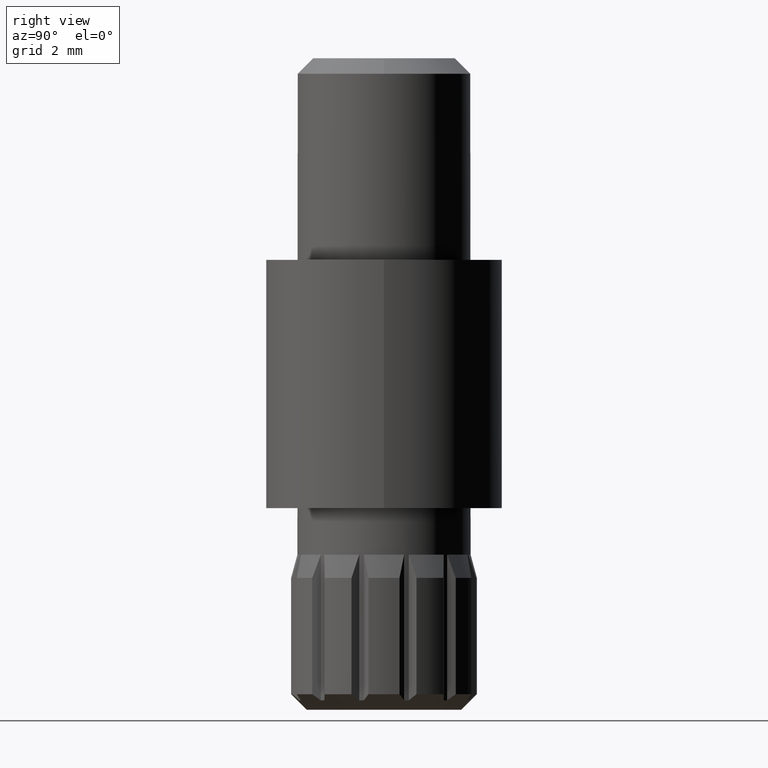
[diagram: clean part render]
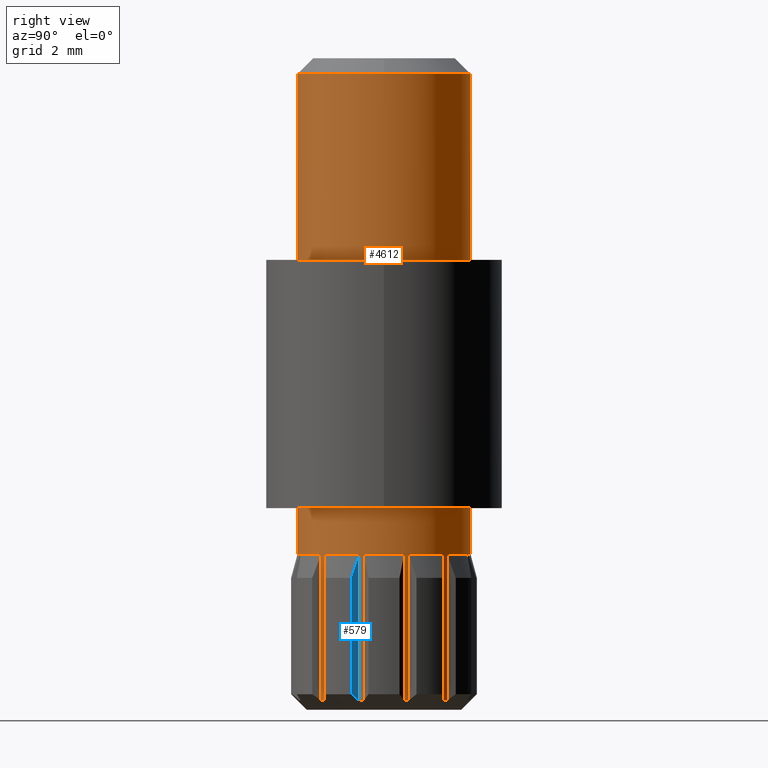
[diagram: same view with the hole feature highlighted: cylindrical wall and planar end face, labeled with their STEP entity ids]
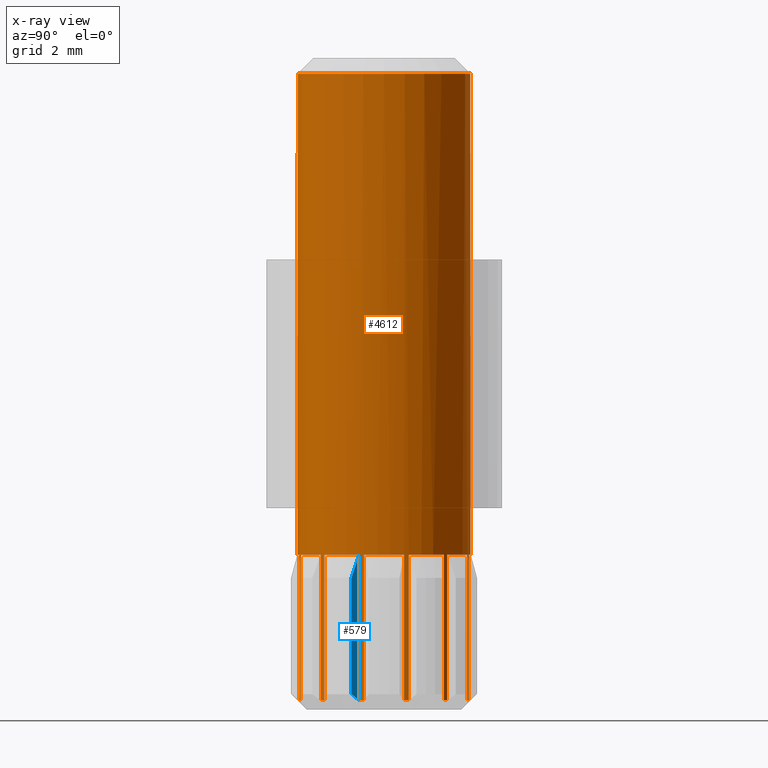
[diagram: x-ray of the same camera — body ghosted, the hole faces saturated]
A machine part, right view. The highlighted faces form one hole feature of diameter 5.6 mm: the cylindrical wall (entity #4612, orange) and its adjacent planar end face (entity #579, blue) — they share a circular edge in the B-rep.
The next image is the same camera in x-ray (body ghosted, the hole faces saturated) — the bore reads through the body.
Wall:
#38 = CARTESIAN_POINT ( 'NONE',  ( -0.7988378706797688578, -2.683627779027451421, 5.000000000000000888 ) ) ;
#79 = ORIENTED_EDGE ( 'NONE', *, *, #9428, .T. ) ;
#97 = ORIENTED_EDGE ( 'NONE', *, *, #5874, .T. ) ;
#124 = LINE ( 'NONE', #7126, #6521 ) ;
#139 = VERTEX_POINT ( 'NONE', #4290 ) ;
#140 = VERTEX_POINT ( 'NONE', #9997 ) ;
#157 = CARTESIAN_POINT ( 'NONE',  ( 1.924670895599505327, -2.033627779027469273, 5.000000000000000888 ) ) ;
#175 = VERTEX_POINT ( 'NONE', #12115 ) ;
#205 = VERTEX_POINT ( 'NONE', #11985 ) ;
#230 = CIRCLE ( 'NONE', #7577, 2.799999999999999822 ) ;
#262 = DIRECTION ( 'NONE',  ( 0.8660254037844344888, -0.5000000000000071054, 0.000000000000000000 ) ) ;
#294 = CARTESIAN_POINT ( 'NONE',  ( -2.723508766279257198, 0.6500000000000284439, 0.2999999999999996003 ) ) ;
#297 = CIRCLE ( 'NONE', #5065, 2.799999999999999822 ) ;
#324 = EDGE_CURVE ( 'NONE', #4536, #140, #11591, .T. ) ;
#355 = CARTESIAN_POINT ( 'NONE',  ( -0.6500000000000000222, 2.723508766279264304, 5.000000000000000888 ) ) ;
#381 = LINE ( 'NONE', #4575, #9552 ) ;
#425 = CARTESIAN_POINT ( 'NONE',  ( -1.924670895599491116, 2.033627779027482596, 0.2999999999999996003 ) ) ;
#510 = DIRECTION ( 'NONE',  ( -0.8660254037844449249, -0.4999999999999889533, 0.000000000000000000 ) ) ;
#575 = CIRCLE ( 'NONE', #7909, 2.800000000000000266 ) ;
#601 = VECTOR ( 'NONE', #10291, 1000.000000000000000 ) ;
#624 = CARTESIAN_POINT ( 'NONE',  ( 0.000000000000000000, 0.000000000000000000, 5.000000000000000000 ) ) ;
#650 = EDGE_CURVE ( 'NONE', #9462, #793, #4235, .T. ) ;
#676 = DIRECTION ( 'NONE',  ( 0.000000000000000000, 0.000000000000000000, -1.000000000000000000 ) ) ;
#679 = ORIENTED_EDGE ( 'NONE', *, *, #12141, .F. ) ;
#737 = LINE ( 'NONE', #9829, #2248 ) ;
#767 = CARTESIAN_POINT ( 'NONE',  ( 2.799999999999999822, 0.000000000000000000, 20.50000000000000355 ) ) ;
#779 = CARTESIAN_POINT ( 'NONE',  ( -2.723508766279257198, 0.6500000000000284439, 5.000000000000000000 ) ) ;
#791 = DIRECTION ( 'NONE',  ( 3.491481338843133750E-15, 1.000000000000000000, 0.000000000000000000 ) ) ;
#793 = VERTEX_POINT ( 'NONE', #9359 ) ;
#881 = AXIS2_PLACEMENT_3D ( 'NONE', #6572, #6610, #1615 ) ;
#941 = VERTEX_POINT ( 'NONE', #38 ) ;
#955 = DIRECTION ( 'NONE',  ( 0.000000000000000000, 0.000000000000000000, 1.000000000000000000 ) ) ;
#958 = EDGE_CURVE ( 'NONE', #8747, #6505, #737, .T. ) ;
#962 = ORIENTED_EDGE ( 'NONE', *, *, #9009, .T. ) ;
#1023 = LINE ( 'NONE', #1450, #5477 ) ;
#1103 = EDGE_CURVE ( 'NONE', #3302, #3227, #3150, .T. ) ;
#1109 = ORIENTED_EDGE ( 'NONE', *, *, #7397, .T. ) ;
#1156 = DIRECTION ( 'NONE',  ( 0.000000000000000000, 0.000000000000000000, -1.000000000000000000 ) ) ;
#1179 = ORIENTED_EDGE ( 'NONE', *, *, #11924, .T. ) ;
#1194 = EDGE_CURVE ( 'NONE', #2578, #10907, #7409, .T. ) ;
#1204 = CARTESIAN_POINT ( 'NONE',  ( 0.000000000000000000, 0.000000000000000000, 0.2999999999999996003 ) ) ;
#1230 = CARTESIAN_POINT ( 'NONE',  ( 0.000000000000000000, 0.000000000000000000, 20.50000000000000355 ) ) ;
#1270 = CARTESIAN_POINT ( 'NONE',  ( -0.6500000000000000222, -2.723508766279264304, 5.000000000000000000 ) ) ;
#1271 = CARTESIAN_POINT ( 'NONE',  ( -2.683627779027465632, -0.7988378706797221174, 0.2999999999999996003 ) ) ;
#1341 = DIRECTION ( 'NONE',  ( 1.000000000000000000, 0.000000000000000000, 0.000000000000000000 ) ) ;
#1349 = CIRCLE ( 'NONE', #5306, 2.799999999999999822 ) ;
#1353 = CARTESIAN_POINT ( 'NONE',  ( 0.000000000000000000, 0.000000000000000000, 5.000000000000000000 ) ) ;
#1423 = CARTESIAN_POINT ( 'NONE',  ( 2.033627779027463056, 1.924670895599512654, 5.000000000000000000 ) ) ;
#1440 = CIRCLE ( 'NONE', #11442, 2.799999999999999822 ) ;
#1450 = CARTESIAN_POINT ( 'NONE',  ( 2.033627779027449289, -1.924670895599527087, 5.000000000000000000 ) ) ;
#1576 = CARTESIAN_POINT ( 'NONE',  ( 2.723508766279261639, -0.6500000000000093481, 0.2999999999999996003 ) ) ;
#1613 = DIRECTION ( 'NONE',  ( 0.000000000000000000, 0.000000000000000000, 1.000000000000000000 ) ) ;
#1615 = DIRECTION ( 'NONE',  ( 0.8660254037844415942, 0.4999999999999950040, 0.000000000000000000 ) ) ;
#1648 = VECTOR ( 'NONE', #7573, 1000.000000000000000 ) ;
#1664 = DIRECTION ( 'NONE',  ( 0.000000000000000000, 0.000000000000000000, -1.000000000000000000 ) ) ;
#1699 = DIRECTION ( 'NONE',  ( 0.000000000000000000, 0.000000000000000000, -1.000000000000000000 ) ) ;
#1712 = EDGE_CURVE ( 'NONE', #9927, #8912, #1023, .T. ) ;
#1769 = LINE ( 'NONE', #4107, #5429 ) ;
#1858 = EDGE_CURVE ( 'NONE', #7070, #3094, #5311, .T. ) ;
#1859 = EDGE_CURVE ( 'NONE', #2254, #3543, #6804, .T. ) ;
#1860 = CARTESIAN_POINT ( 'NONE',  ( -2.033627779027476379, -1.924670895599498444, 0.2999999999999999334 ) ) ;
#1877 = CARTESIAN_POINT ( 'NONE',  ( 0.000000000000000000, 0.000000000000000000, 5.000000000000000000 ) ) ;
#1942 = CARTESIAN_POINT ( 'NONE',  ( 2.723508766279266524, 0.6499999999999904743, 5.000000000000000000 ) ) ;
#2001 = AXIS2_PLACEMENT_3D ( 'NONE', #8564, #4636, #4729 ) ;
#2042 = VERTEX_POINT ( 'NONE', #9108 ) ;
#2110 = CARTESIAN_POINT ( 'NONE',  ( 0.6500000000000000222, -2.723508766279264304, 5.000000000000000888 ) ) ;
#2120 = DIRECTION ( 'NONE',  ( 0.000000000000000000, 0.000000000000000000, 1.000000000000000000 ) ) ;
#2123 = CIRCLE ( 'NONE', #2809, 2.800000000000000266 ) ;
#2186 = CARTESIAN_POINT ( 'NONE',  ( 1.924670895599520426, 2.033627779027456395, 5.000000000000000000 ) ) ;
#2248 = VECTOR ( 'NONE', #4925, 1000.000000000000000 ) ;
#2254 = VERTEX_POINT ( 'NONE', #9921 ) ;
#2306 = CARTESIAN_POINT ( 'NONE',  ( 2.683627779027454974, -0.7988378706797597539, 5.000000000000000000 ) ) ;
#2308 = CARTESIAN_POINT ( 'NONE',  ( 2.033627779027462612, 1.924670895599512432, 5.000000000000000888 ) ) ;
#2332 = CIRCLE ( 'NONE', #9053, 2.799999999999999822 ) ;
#2375 = VERTEX_POINT ( 'NONE', #4736 ) ;
#2380 = ORIENTED_EDGE ( 'NONE', *, *, #8583, .F. ) ;
#2424 = AXIS2_PLACEMENT_3D ( 'NONE', #10790, #4946, #9851 ) ;
#2481 = VERTEX_POINT ( 'NONE', #9835 ) ;
#2498 = DIRECTION ( 'NONE',  ( 1.000000000000000000, 0.000000000000000000, 0.000000000000000000 ) ) ;
#2537 = VECTOR ( 'NONE', #1664, 1000.000000000000000 ) ;
#2578 = VERTEX_POINT ( 'NONE', #4530 ) ;
#2619 = CARTESIAN_POINT ( 'NONE',  ( -0.7988378706797126805, 2.683627779027468296, 0.2999999999999998224 ) ) ;
#2665 = CARTESIAN_POINT ( 'NONE',  ( -2.683627779027448756, 0.7988378706797785167, 5.000000000000000888 ) ) ;
#2666 = CIRCLE ( 'NONE', #8415, 2.800000000000000266 ) ;
#2668 = VERTEX_POINT ( 'NONE', #9611 ) ;
#2700 = VERTEX_POINT ( 'NONE', #3675 ) ;
#2702 = LINE ( 'NONE', #3485, #3782 ) ;
#2723 = DIRECTION ( 'NONE',  ( 0.5000000000000039968, 0.8660254037844363761, 0.000000000000000000 ) ) ;
#2743 = AXIS2_PLACEMENT_3D ( 'NONE', #3599, #7317, #5563 ) ;
#2752 = VERTEX_POINT ( 'NONE', #7332 ) ;
#2755 = ORIENTED_EDGE ( 'NONE', *, *, #1103, .F. ) ;
#2784 = ORIENTED_EDGE ( 'NONE', *, *, #8505, .T. ) ;
#2807 = VECTOR ( 'NONE', #7107, 1000.000000000000000 ) ;
#2809 = AXIS2_PLACEMENT_3D ( 'NONE', #6174, #11111, #9093 ) ;
#2812 = CARTESIAN_POINT ( 'NONE',  ( -2.723508766279258086, 0.6500000000000286660, 5.000000000000000000 ) ) ;
#2817 = EDGE_CURVE ( 'NONE', #6274, #2668, #3471, .T. ) ;
#2952 = FACE_OUTER_BOUND ( 'NONE', #9868, .T. ) ;
#2968 = DIRECTION ( 'NONE',  ( -0.8660254037844380415, 0.5000000000000009992, 0.000000000000000000 ) ) ;
#2986 = VERTEX_POINT ( 'NONE', #2812 ) ;
#3024 = ORIENTED_EDGE ( 'NONE', *, *, #11088, .T. ) ;
#3074 = CARTESIAN_POINT ( 'NONE',  ( 0.000000000000000000, 0.000000000000000000, 0.2999999999999996003 ) ) ;
#3094 = VERTEX_POINT ( 'NONE', #355 ) ;
#3096 = CARTESIAN_POINT ( 'NONE',  ( 0.6499999999999999112, 2.723508766279263860, 0.2999999999999996003 ) ) ;
#3098 = DIRECTION ( 'NONE',  ( -0.5000000000000101030, -0.8660254037844328234, 0.000000000000000000 ) ) ;
#3150 = LINE ( 'NONE', #11016, #11575 ) ;
#3166 = ORIENTED_EDGE ( 'NONE', *, *, #10522, .T. ) ;
#3204 = ORIENTED_EDGE ( 'NONE', *, *, #3458, .T. ) ;
#3210 = ORIENTED_EDGE ( 'NONE', *, *, #6763, .T. ) ;
#3217 = DIRECTION ( 'NONE',  ( 0.000000000000000000, 0.000000000000000000, -1.000000000000000000 ) ) ;
#3227 = VERTEX_POINT ( 'NONE', #5075 ) ;
#3271 = VERTEX_POINT ( 'NONE', #1271 ) ;
#3280 = DIRECTION ( 'NONE',  ( 0.000000000000000000, 0.000000000000000000, -1.000000000000000000 ) ) ;
#3302 = VERTEX_POINT ( 'NONE', #5304 ) ;
#3307 = CARTESIAN_POINT ( 'NONE',  ( 2.723508766279262083, -0.6500000000000094591, 5.000000000000000000 ) ) ;
#3326 = AXIS2_PLACEMENT_3D ( 'NONE', #9187, #8251, #10290 ) ;
#3353 = LINE ( 'NONE', #11561, #11748 ) ;
#3382 = DIRECTION ( 'NONE',  ( 0.000000000000000000, 0.000000000000000000, -1.000000000000000000 ) ) ;
#3383 = DIRECTION ( 'NONE',  ( 0.000000000000000000, 0.000000000000000000, -1.000000000000000000 ) ) ;
#3406 = DIRECTION ( 'NONE',  ( 0.000000000000000000, 0.000000000000000000, -1.000000000000000000 ) ) ;
#3458 = EDGE_CURVE ( 'NONE', #2375, #4652, #6338, .T. ) ;
#3463 = VECTOR ( 'NONE', #4559, 1000.000000000000000 ) ;
#3471 = LINE ( 'NONE', #10581, #2537 ) ;
#3484 = CARTESIAN_POINT ( 'NONE',  ( 0.000000000000000000, 0.000000000000000000, 0.2999999999999996003 ) ) ;
#3485 = CARTESIAN_POINT ( 'NONE',  ( -1.924670895599491116, 2.033627779027482596, 5.000000000000000000 ) ) ;
#3523 = EDGE_CURVE ( 'NONE', #10648, #2752, #10340, .T. ) ;
#3543 = VERTEX_POINT ( 'NONE', #1576 ) ;
#3599 = CARTESIAN_POINT ( 'NONE',  ( 0.000000000000000000, 0.000000000000000000, 0.2999999999999996003 ) ) ;
#3611 = CIRCLE ( 'NONE', #2424, 2.799999999999999822 ) ;
#3629 = CARTESIAN_POINT ( 'NONE',  ( 2.683627779027460747, 0.7988378706797413242, 5.000000000000000000 ) ) ;
#3636 = CARTESIAN_POINT ( 'NONE',  ( -0.7988378706797133466, 2.683627779027469185, 5.000000000000000000 ) ) ;
#3664 = VERTEX_POINT ( 'NONE', #425 ) ;
#3675 = CARTESIAN_POINT ( 'NONE',  ( -2.033627779027436411, 1.924670895599542186, 5.000000000000000000 ) ) ;
#3705 = CARTESIAN_POINT ( 'NONE',  ( 0.7988378706797313322, -2.683627779027462523, 0.2999999999999996003 ) ) ;
#3734 = CIRCLE ( 'NONE', #10537, 2.799999999999999822 ) ;
#3761 = VECTOR ( 'NONE', #6842, 1000.000000000000000 ) ;
#3782 = VECTOR ( 'NONE', #12202, 1000.000000000000000 ) ;
#3783 = DIRECTION ( 'NONE',  ( 0.000000000000000000, 0.000000000000000000, 1.000000000000000000 ) ) ;
#3792 = CIRCLE ( 'NONE', #6653, 2.800000000000000711 ) ;
#3902 = VERTEX_POINT ( 'NONE', #8793 ) ;
#3905 = DIRECTION ( 'NONE',  ( -0.000000000000000000, -0.000000000000000000, -1.000000000000000000 ) ) ;
#3924 = VECTOR ( 'NONE', #3383, 1000.000000000000000 ) ;
#3937 = VERTEX_POINT ( 'NONE', #7827 ) ;
#4050 = LINE ( 'NONE', #1423, #6327 ) ;
#4100 = CARTESIAN_POINT ( 'NONE',  ( 0.000000000000000000, 0.000000000000000000, 5.000000000000000000 ) ) ;
#4107 = CARTESIAN_POINT ( 'NONE',  ( -0.6500000000000000222, 2.723508766279264304, 5.000000000000000000 ) ) ;
#4220 = DIRECTION ( 'NONE',  ( 0.000000000000000000, 0.000000000000000000, 1.000000000000000000 ) ) ;
#4235 = LINE ( 'NONE', #2306, #3924 ) ;
#4261 = CARTESIAN_POINT ( 'NONE',  ( 2.033627779027463056, 1.924670895599512654, 0.2999999999999999334 ) ) ;
#4290 = CARTESIAN_POINT ( 'NONE',  ( -2.723508766279271409, -0.6499999999999714895, 0.2999999999999998779 ) ) ;
#4305 = CARTESIAN_POINT ( 'NONE',  ( -0.6500000000000001332, -2.723508766279265192, 5.000000000000000000 ) ) ;
#4348 = ORIENTED_EDGE ( 'NONE', *, *, #650, .T. ) ;
#4425 = DIRECTION ( 'NONE',  ( 1.000000000000000000, 0.000000000000000000, 0.000000000000000000 ) ) ;
#4476 = DIRECTION ( 'NONE',  ( -1.047444401652940164E-14, -1.000000000000000000, 0.000000000000000000 ) ) ;
#4492 = VERTEX_POINT ( 'NONE', #4305 ) ;
#4530 = CARTESIAN_POINT ( 'NONE',  ( -2.683627779027448756, 0.7988378706797785167, 0.2999999999999998224 ) ) ;
#4536 = VERTEX_POINT ( 'NONE', #3629 ) ;
#4559 = DIRECTION ( 'NONE',  ( 0.000000000000000000, 0.000000000000000000, -1.000000000000000000 ) ) ;
#4575 = CARTESIAN_POINT ( 'NONE',  ( 0.7988378706797314432, -2.683627779027462967, 5.000000000000000000 ) ) ;
#4612 = ADVANCED_FACE ( 'NONE', ( #12002, #2952 ), #6760, .T. ) ;
#4636 = DIRECTION ( 'NONE',  ( 0.000000000000000000, 0.000000000000000000, 1.000000000000000000 ) ) ;
#4652 = VERTEX_POINT ( 'NONE', #1860 ) ;
#4729 = DIRECTION ( 'NONE',  ( 1.000000000000000000, 0.000000000000000000, 0.000000000000000000 ) ) ;
#4736 = CARTESIAN_POINT ( 'NONE',  ( -2.033627779027475935, -1.924670895599498222, 5.000000000000000888 ) ) ;
#4744 = CARTESIAN_POINT ( 'NONE',  ( 0.000000000000000000, 0.000000000000000000, 21.00000000000000000 ) ) ;
#4796 = ORIENTED_EDGE ( 'NONE', *, *, #11424, .T. ) ;
#4802 = AXIS2_PLACEMENT_3D ( 'NONE', #10607, #11507, #2723 ) ;
#4890 = CIRCLE ( 'NONE', #881, 2.800000000000000266 ) ;
#4894 = EDGE_CURVE ( 'NONE', #10648, #7034, #6312, .T. ) ;
#4918 = ORIENTED_EDGE ( 'NONE', *, *, #324, .F. ) ;
#4925 = DIRECTION ( 'NONE',  ( 0.000000000000000000, 0.000000000000000000, -1.000000000000000000 ) ) ;
#4946 = DIRECTION ( 'NONE',  ( 0.000000000000000000, 0.000000000000000000, 1.000000000000000000 ) ) ;
#4984 = EDGE_CURVE ( 'NONE', #10260, #3937, #5414, .T. ) ;
#5047 = EDGE_CURVE ( 'NONE', #12489, #3937, #9549, .T. ) ;
#5059 = ORIENTED_EDGE ( 'NONE', *, *, #11693, .T. ) ;
#5065 = AXIS2_PLACEMENT_3D ( 'NONE', #7349, #8350, #2498 ) ;
#5075 = CARTESIAN_POINT ( 'NONE',  ( -1.924670895599533749, -2.033627779027442628, 0.2999999999999996003 ) ) ;
#5164 = EDGE_CURVE ( 'NONE', #2700, #2042, #8628, .T. ) ;
#5171 = DIRECTION ( 'NONE',  ( 0.000000000000000000, 0.000000000000000000, -1.000000000000000000 ) ) ;
#5226 = DIRECTION ( 'NONE',  ( 1.000000000000000000, 0.000000000000000000, 0.000000000000000000 ) ) ;
#5231 = EDGE_CURVE ( 'NONE', #3664, #2042, #3734, .T. ) ;
#5274 = CARTESIAN_POINT ( 'NONE',  ( 2.723508766279266524, 0.6499999999999904743, 0.2999999999999997113 ) ) ;
#5304 = CARTESIAN_POINT ( 'NONE',  ( -1.924670895599534415, -2.033627779027443072, 5.000000000000000000 ) ) ;
#5306 = AXIS2_PLACEMENT_3D ( 'NONE', #11828, #2120, #3098 ) ;
#5311 = CIRCLE ( 'NONE', #12237, 2.800000000000000266 ) ;
#5342 = ORIENTED_EDGE ( 'NONE', *, *, #1712, .F. ) ;
#5344 = VERTEX_POINT ( 'NONE', #2308 ) ;
#5356 = DIRECTION ( 'NONE',  ( -0.000000000000000000, -0.000000000000000000, 1.000000000000000000 ) ) ;
#5385 = DIRECTION ( 'NONE',  ( 0.000000000000000000, 0.000000000000000000, 1.000000000000000000 ) ) ;
#5414 = LINE ( 'NONE', #11517, #6746 ) ;
#5429 = VECTOR ( 'NONE', #11083, 1000.000000000000000 ) ;
#5477 = VECTOR ( 'NONE', #3406, 1000.000000000000000 ) ;
#5535 = DIRECTION ( 'NONE',  ( 0.000000000000000000, 0.000000000000000000, 1.000000000000000000 ) ) ;
#5536 = ORIENTED_EDGE ( 'NONE', *, *, #5231, .T. ) ;
#5563 = DIRECTION ( 'NONE',  ( 1.000000000000000000, 0.000000000000000000, 0.000000000000000000 ) ) ;
#5639 = EDGE_CURVE ( 'NONE', #4652, #3227, #1440, .T. ) ;
#5646 = LINE ( 'NONE', #7215, #601 ) ;
#5762 = ORIENTED_EDGE ( 'NONE', *, *, #11899, .F. ) ;
#5787 = DIRECTION ( 'NONE',  ( 0.000000000000000000, 0.000000000000000000, -1.000000000000000000 ) ) ;
#5801 = EDGE_CURVE ( 'NONE', #9617, #7034, #2332, .T. ) ;
#5806 = CARTESIAN_POINT ( 'NONE',  ( -2.033627779027476379, -1.924670895599498444, 5.000000000000000000 ) ) ;
#5813 = LINE ( 'NONE', #6145, #11481 ) ;
#5820 = ORIENTED_EDGE ( 'NONE', *, *, #8314, .T. ) ;
#5874 = EDGE_CURVE ( 'NONE', #6505, #6076, #12185, .T. ) ;
#5907 = LINE ( 'NONE', #779, #1648 ) ;
#6047 = LINE ( 'NONE', #11319, #3463 ) ;
#6076 = VERTEX_POINT ( 'NONE', #3705 ) ;
#6113 = DIRECTION ( 'NONE',  ( 1.000000000000000000, 0.000000000000000000, 0.000000000000000000 ) ) ;
#6145 = CARTESIAN_POINT ( 'NONE',  ( -2.683627779027448756, 0.7988378706797784057, 5.000000000000000000 ) ) ;
#6174 = CARTESIAN_POINT ( 'NONE',  ( 0.000000000000000000, 0.000000000000000000, 5.000000000000000000 ) ) ;
#6185 = CARTESIAN_POINT ( 'NONE',  ( 0.6500000000000000222, -2.723508766279264304, 0.2999999999999998779 ) ) ;
#6274 = VERTEX_POINT ( 'NONE', #157 ) ;
#6312 = LINE ( 'NONE', #11310, #11387 ) ;
#6327 = VECTOR ( 'NONE', #3382, 1000.000000000000000 ) ;
#6338 = LINE ( 'NONE', #5806, #3761 ) ;
#6358 = EDGE_CURVE ( 'NONE', #10453, #10827, #10866, .T. ) ;
#6395 = EDGE_CURVE ( 'NONE', #12104, #7214, #12543, .T. ) ;
#6480 = CIRCLE ( 'NONE', #8923, 2.800000000000000711 ) ;
#6483 = CARTESIAN_POINT ( 'NONE',  ( 2.683627779027459859, 0.7988378706797408801, 5.000000000000000000 ) ) ;
#6497 = VERTEX_POINT ( 'NONE', #11077 ) ;
#6500 = EDGE_CURVE ( 'NONE', #7790, #2578, #5813, .T. ) ;
#6505 = VERTEX_POINT ( 'NONE', #6185 ) ;
#6521 = VECTOR ( 'NONE', #8155, 1000.000000000000000 ) ;
#6550 = DIRECTION ( 'NONE',  ( 1.000000000000000000, 0.000000000000000000, 0.000000000000000000 ) ) ;
#6553 = CARTESIAN_POINT ( 'NONE',  ( -0.6499999999999999112, 2.723508766279263860, 0.2999999999999996003 ) ) ;
#6555 = EDGE_CURVE ( 'NONE', #7214, #140, #297, .T. ) ;
#6572 = CARTESIAN_POINT ( 'NONE',  ( 0.000000000000000000, 0.000000000000000000, 5.000000000000000000 ) ) ;
#6610 = DIRECTION ( 'NONE',  ( 0.000000000000000000, 0.000000000000000000, 1.000000000000000000 ) ) ;
#6624 = LINE ( 'NONE', #1270, #2807 ) ;
#6653 = AXIS2_PLACEMENT_3D ( 'NONE', #4100, #8854, #2968 ) ;
#6746 = VECTOR ( 'NONE', #10450, 1000.000000000000000 ) ;
#6760 = CYLINDRICAL_SURFACE ( 'NONE', #7290, 2.799999999999999822 ) ;
#6763 = EDGE_CURVE ( 'NONE', #4536, #5344, #2123, .T. ) ;
#6780 = ORIENTED_EDGE ( 'NONE', *, *, #5047, .T. ) ;
#6804 = LINE ( 'NONE', #3307, #7572 ) ;
#6824 = CARTESIAN_POINT ( 'NONE',  ( 0.6500000000000001332, 2.723508766279265192, 5.000000000000000000 ) ) ;
#6842 = DIRECTION ( 'NONE',  ( 0.000000000000000000, 0.000000000000000000, -1.000000000000000000 ) ) ;
#6931 = DIRECTION ( 'NONE',  ( 0.000000000000000000, 0.000000000000000000, 1.000000000000000000 ) ) ;
#6975 = CIRCLE ( 'NONE', #7977, 2.800000000000000266 ) ;
#7034 = VERTEX_POINT ( 'NONE', #2619 ) ;
#7043 = ORIENTED_EDGE ( 'NONE', *, *, #6555, .T. ) ;
#7056 = ORIENTED_EDGE ( 'NONE', *, *, #4984, .F. ) ;
#7066 = AXIS2_PLACEMENT_3D ( 'NONE', #9605, #3783, #10709 ) ;
#7070 = VERTEX_POINT ( 'NONE', #6824 ) ;
#7107 = DIRECTION ( 'NONE',  ( 0.000000000000000000, 0.000000000000000000, -1.000000000000000000 ) ) ;
#7126 = CARTESIAN_POINT ( 'NONE',  ( 0.7988378706797502060, 2.683627779027457194, 5.000000000000000000 ) ) ;
#7214 = VERTEX_POINT ( 'NONE', #5274 ) ;
#7215 = CARTESIAN_POINT ( 'NONE',  ( -2.683627779027465632, -0.7988378706797221174, 5.000000000000000000 ) ) ;
#7290 = AXIS2_PLACEMENT_3D ( 'NONE', #4744, #3905, #10753 ) ;
#7317 = DIRECTION ( 'NONE',  ( 0.000000000000000000, 0.000000000000000000, 1.000000000000000000 ) ) ;
#7332 = CARTESIAN_POINT ( 'NONE',  ( -1.924670895599491116, 2.033627779027482596, 5.000000000000000888 ) ) ;
#7349 = CARTESIAN_POINT ( 'NONE',  ( 0.000000000000000000, 0.000000000000000000, 0.2999999999999996003 ) ) ;
#7397 = EDGE_CURVE ( 'NONE', #9927, #9462, #12217, .T. ) ;
#7409 = CIRCLE ( 'NONE', #10997, 2.799999999999999822 ) ;
#7558 = LINE ( 'NONE', #9143, #8652 ) ;
#7572 = VECTOR ( 'NONE', #3217, 1000.000000000000000 ) ;
#7573 = DIRECTION ( 'NONE',  ( 0.000000000000000000, 0.000000000000000000, -1.000000000000000000 ) ) ;
#7577 = AXIS2_PLACEMENT_3D ( 'NONE', #1230, #11129, #8015 ) ;
#7632 = VERTEX_POINT ( 'NONE', #11042 ) ;
#7652 = ORIENTED_EDGE ( 'NONE', *, *, #8317, .F. ) ;
#7688 = CARTESIAN_POINT ( 'NONE',  ( 0.000000000000000000, 0.000000000000000000, 0.2999999999999996003 ) ) ;
#7727 = ORIENTED_EDGE ( 'NONE', *, *, #1858, .T. ) ;
#7790 = VERTEX_POINT ( 'NONE', #2665 ) ;
#7827 = CARTESIAN_POINT ( 'NONE',  ( 1.924670895599519538, 2.033627779027455507, 0.2999999999999996003 ) ) ;
#7859 = ORIENTED_EDGE ( 'NONE', *, *, #11991, .T. ) ;
#7909 = AXIS2_PLACEMENT_3D ( 'NONE', #11418, #10473, #6550 ) ;
#7919 = EDGE_CURVE ( 'NONE', #793, #3543, #10690, .T. ) ;
#7931 = DIRECTION ( 'NONE',  ( 1.000000000000000000, 0.000000000000000000, 0.000000000000000000 ) ) ;
#7977 = AXIS2_PLACEMENT_3D ( 'NONE', #8450, #5385, #4476 ) ;
#8010 = ORIENTED_EDGE ( 'NONE', *, *, #958, .T. ) ;
#8015 = DIRECTION ( 'NONE',  ( 1.000000000000000000, 0.000000000000000000, 0.000000000000000000 ) ) ;
#8063 = CIRCLE ( 'NONE', #7066, 2.800000000000000711 ) ;
#8097 = DIRECTION ( 'NONE',  ( 0.000000000000000000, 0.000000000000000000, -1.000000000000000000 ) ) ;
#8155 = DIRECTION ( 'NONE',  ( 0.000000000000000000, 0.000000000000000000, -1.000000000000000000 ) ) ;
#8210 = CARTESIAN_POINT ( 'NONE',  ( 2.033627779027449289, -1.924670895599527531, 5.000000000000000000 ) ) ;
#8251 = DIRECTION ( 'NONE',  ( 0.000000000000000000, 0.000000000000000000, 1.000000000000000000 ) ) ;
#8294 = VECTOR ( 'NONE', #5787, 1000.000000000000000 ) ;
#8314 = EDGE_CURVE ( 'NONE', #205, #6274, #4890, .T. ) ;
#8317 = EDGE_CURVE ( 'NONE', #7070, #10827, #3353, .T. ) ;
#8350 = DIRECTION ( 'NONE',  ( 0.000000000000000000, 0.000000000000000000, 1.000000000000000000 ) ) ;
#8361 = CARTESIAN_POINT ( 'NONE',  ( 2.683627779027454086, -0.7988378706797595319, 5.000000000000000888 ) ) ;
#8366 = ORIENTED_EDGE ( 'NONE', *, *, #1194, .T. ) ;
#8415 = AXIS2_PLACEMENT_3D ( 'NONE', #1877, #955, #791 ) ;
#8450 = CARTESIAN_POINT ( 'NONE',  ( 0.000000000000000000, 0.000000000000000000, 5.000000000000000000 ) ) ;
#8495 = DIRECTION ( 'NONE',  ( 0.000000000000000000, 0.000000000000000000, -1.000000000000000000 ) ) ;
#8505 = EDGE_CURVE ( 'NONE', #10260, #3902, #3792, .T. ) ;
#8564 = CARTESIAN_POINT ( 'NONE',  ( 0.000000000000000000, 0.000000000000000000, 0.2999999999999996003 ) ) ;
#8583 = EDGE_CURVE ( 'NONE', #7632, #3271, #5646, .T. ) ;
#8628 = LINE ( 'NONE', #10659, #8294 ) ;
#8652 = VECTOR ( 'NONE', #3280, 1000.000000000000000 ) ;
#8693 = EDGE_CURVE ( 'NONE', #7632, #2375, #8063, .T. ) ;
#8747 = VERTEX_POINT ( 'NONE', #2110 ) ;
#8793 = CARTESIAN_POINT ( 'NONE',  ( 0.7988378706797502060, 2.683627779027457194, 5.000000000000000888 ) ) ;
#8854 = DIRECTION ( 'NONE',  ( 0.000000000000000000, 0.000000000000000000, 1.000000000000000000 ) ) ;
#8912 = VERTEX_POINT ( 'NONE', #11145 ) ;
#8923 = AXIS2_PLACEMENT_3D ( 'NONE', #1353, #12009, #262 ) ;
#8974 = ORIENTED_EDGE ( 'NONE', *, *, #6358, .T. ) ;
#8992 = ORIENTED_EDGE ( 'NONE', *, *, #4894, .F. ) ;
#9009 = EDGE_CURVE ( 'NONE', #3902, #10453, #124, .T. ) ;
#9053 = AXIS2_PLACEMENT_3D ( 'NONE', #9100, #4220, #1341 ) ;
#9060 = EDGE_CURVE ( 'NONE', #2752, #3664, #2702, .T. ) ;
#9093 = DIRECTION ( 'NONE',  ( -0.4999999999999980016, 0.8660254037844399289, 0.000000000000000000 ) ) ;
#9100 = CARTESIAN_POINT ( 'NONE',  ( 0.000000000000000000, 0.000000000000000000, 0.2999999999999996003 ) ) ;
#9108 = CARTESIAN_POINT ( 'NONE',  ( -2.033627779027435523, 1.924670895599541076, 0.2999999999999996003 ) ) ;
#9143 = CARTESIAN_POINT ( 'NONE',  ( -2.723508766279271409, -0.6499999999999714895, 5.000000000000000000 ) ) ;
#9187 = CARTESIAN_POINT ( 'NONE',  ( 0.000000000000000000, 0.000000000000000000, 0.2999999999999996003 ) ) ;
#9260 = DIRECTION ( 'NONE',  ( 0.000000000000000000, 0.000000000000000000, 1.000000000000000000 ) ) ;
#9271 = ORIENTED_EDGE ( 'NONE', *, *, #8693, .T. ) ;
#9354 = CARTESIAN_POINT ( 'NONE',  ( 0.000000000000000000, 0.000000000000000000, 5.000000000000000000 ) ) ;
#9359 = CARTESIAN_POINT ( 'NONE',  ( 2.683627779027454974, -0.7988378706797596429, 0.3000000000000002665 ) ) ;
#9364 = DIRECTION ( 'NONE',  ( -1.000000000000000000, 0.000000000000000000, 0.000000000000000000 ) ) ;
#9365 = CARTESIAN_POINT ( 'NONE',  ( 0.7988378706797500950, 2.683627779027457194, 0.2999999999999997669 ) ) ;
#9428 = EDGE_CURVE ( 'NONE', #2668, #8912, #10988, .T. ) ;
#9445 = CIRCLE ( 'NONE', #10792, 2.799999999999999822 ) ;
#9462 = VERTEX_POINT ( 'NONE', #8361 ) ;
#9481 = EDGE_CURVE ( 'NONE', #2986, #175, #6975, .T. ) ;
#9510 = ORIENTED_EDGE ( 'NONE', *, *, #11937, .T. ) ;
#9524 = CARTESIAN_POINT ( 'NONE',  ( 2.723508766279266524, 0.6499999999999904743, 5.000000000000000888 ) ) ;
#9549 = CIRCLE ( 'NONE', #2001, 2.799999999999999822 ) ;
#9552 = VECTOR ( 'NONE', #8495, 1000.000000000000000 ) ;
#9580 = ORIENTED_EDGE ( 'NONE', *, *, #6395, .T. ) ;
#9605 = CARTESIAN_POINT ( 'NONE',  ( 0.000000000000000000, 0.000000000000000000, 5.000000000000000000 ) ) ;
#9611 = CARTESIAN_POINT ( 'NONE',  ( 1.924670895599505327, -2.033627779027469273, 0.2999999999999997669 ) ) ;
#9617 = VERTEX_POINT ( 'NONE', #6553 ) ;
#9695 = EDGE_LOOP ( 'NONE', ( #2380, #9271, #3204, #11927, #2755, #9510, #10222, #4796, #5762, #11460, #8010, #97, #679, #5820, #12379, #79, #5342, #1109, #4348, #10032, #11376, #5059, #9580, #7043, #4918, #3210, #7859, #6780, #7056, #2784, #962, #8974, #7652, #7727, #10976, #12546, #8992, #12475, #12074, #5536, #12138, #3166, #10505, #8366, #10871, #11206, #3024, #11508 ) ) ;
#9829 = CARTESIAN_POINT ( 'NONE',  ( 0.6500000000000000222, -2.723508766279264304, 5.000000000000000000 ) ) ;
#9835 = CARTESIAN_POINT ( 'NONE',  ( -0.7988378706797689688, -2.683627779027451865, 0.3000000000000002109 ) ) ;
#9851 = DIRECTION ( 'NONE',  ( 1.000000000000000000, 0.000000000000000000, 0.000000000000000000 ) ) ;
#9868 = EDGE_LOOP ( 'NONE', ( #1179 ) ) ;
#9878 = AXIS2_PLACEMENT_3D ( 'NONE', #1204, #1613, #5226 ) ;
#9921 = CARTESIAN_POINT ( 'NONE',  ( 2.723508766279262527, -0.6500000000000095701, 5.000000000000000000 ) ) ;
#9927 = VERTEX_POINT ( 'NONE', #8210 ) ;
#9947 = EDGE_CURVE ( 'NONE', #139, #3271, #9445, .T. ) ;
#9997 = CARTESIAN_POINT ( 'NONE',  ( 2.683627779027459859, 0.7988378706797408801, 0.2999999999999996003 ) ) ;
#10032 = ORIENTED_EDGE ( 'NONE', *, *, #7919, .T. ) ;
#10222 = ORIENTED_EDGE ( 'NONE', *, *, #11250, .T. ) ;
#10260 = VERTEX_POINT ( 'NONE', #2186 ) ;
#10290 = DIRECTION ( 'NONE',  ( 1.000000000000000000, 0.000000000000000000, 0.000000000000000000 ) ) ;
#10291 = DIRECTION ( 'NONE',  ( 0.000000000000000000, 0.000000000000000000, -1.000000000000000000 ) ) ;
#10314 = DIRECTION ( 'NONE',  ( 1.000000000000000000, 0.000000000000000000, 0.000000000000000000 ) ) ;
#10340 = CIRCLE ( 'NONE', #12154, 2.800000000000000266 ) ;
#10450 = DIRECTION ( 'NONE',  ( 0.000000000000000000, 0.000000000000000000, -1.000000000000000000 ) ) ;
#10453 = VERTEX_POINT ( 'NONE', #9365 ) ;
#10466 = VERTEX_POINT ( 'NONE', #767 ) ;
#10473 = DIRECTION ( 'NONE',  ( 0.000000000000000000, 0.000000000000000000, 1.000000000000000000 ) ) ;
#10505 = ORIENTED_EDGE ( 'NONE', *, *, #6500, .T. ) ;
#10522 = EDGE_CURVE ( 'NONE', #2700, #7790, #1349, .T. ) ;
#10537 = AXIS2_PLACEMENT_3D ( 'NONE', #3074, #11934, #6113 ) ;
#10581 = CARTESIAN_POINT ( 'NONE',  ( 1.924670895599505327, -2.033627779027469273, 5.000000000000000000 ) ) ;
#10607 = CARTESIAN_POINT ( 'NONE',  ( 0.000000000000000000, 0.000000000000000000, 5.000000000000000000 ) ) ;
#10614 = EDGE_CURVE ( 'NONE', #4492, #8747, #575, .T. ) ;
#10648 = VERTEX_POINT ( 'NONE', #3636 ) ;
#10659 = CARTESIAN_POINT ( 'NONE',  ( -2.033627779027435523, 1.924670895599541076, 5.000000000000000000 ) ) ;
#10664 = EDGE_CURVE ( 'NONE', #2986, #10907, #5907, .T. ) ;
#10690 = CIRCLE ( 'NONE', #11766, 2.799999999999999822 ) ;
#10709 = DIRECTION ( 'NONE',  ( 0.4999999999999918954, -0.8660254037844432595, 0.000000000000000000 ) ) ;
#10753 = DIRECTION ( 'NONE',  ( -1.000000000000000000, 0.000000000000000000, 0.000000000000000000 ) ) ;
#10790 = CARTESIAN_POINT ( 'NONE',  ( 0.000000000000000000, 0.000000000000000000, 0.2999999999999996003 ) ) ;
#10792 = AXIS2_PLACEMENT_3D ( 'NONE', #12216, #9260, #4425 ) ;
#10827 = VERTEX_POINT ( 'NONE', #3096 ) ;
#10866 = CIRCLE ( 'NONE', #9878, 2.799999999999999822 ) ;
#10871 = ORIENTED_EDGE ( 'NONE', *, *, #10664, .F. ) ;
#10907 = VERTEX_POINT ( 'NONE', #294 ) ;
#10976 = ORIENTED_EDGE ( 'NONE', *, *, #11845, .T. ) ;
#10988 = CIRCLE ( 'NONE', #2743, 2.799999999999999822 ) ;
#10997 = AXIS2_PLACEMENT_3D ( 'NONE', #3484, #5535, #10314 ) ;
#11016 = CARTESIAN_POINT ( 'NONE',  ( -1.924670895599533971, -2.033627779027443072, 5.000000000000000000 ) ) ;
#11042 = CARTESIAN_POINT ( 'NONE',  ( -2.683627779027466076, -0.7988378706797225615, 5.000000000000000000 ) ) ;
#11077 = CARTESIAN_POINT ( 'NONE',  ( -0.6499999999999999112, -2.723508766279263860, 0.2999999999999996003 ) ) ;
#11083 = DIRECTION ( 'NONE',  ( 0.000000000000000000, 0.000000000000000000, -1.000000000000000000 ) ) ;
#11088 = EDGE_CURVE ( 'NONE', #175, #139, #7558, .T. ) ;
#11111 = DIRECTION ( 'NONE',  ( 0.000000000000000000, 0.000000000000000000, 1.000000000000000000 ) ) ;
#11129 = DIRECTION ( 'NONE',  ( 0.000000000000000000, 0.000000000000000000, -1.000000000000000000 ) ) ;
#11145 = CARTESIAN_POINT ( 'NONE',  ( 2.033627779027448845, -1.924670895599526865, 0.2999999999999996003 ) ) ;
#11167 = VECTOR ( 'NONE', #1156, 1000.000000000000000 ) ;
#11206 = ORIENTED_EDGE ( 'NONE', *, *, #9481, .T. ) ;
#11244 = DIRECTION ( 'NONE',  ( 0.000000000000000000, 0.000000000000000000, 1.000000000000000000 ) ) ;
#11250 = EDGE_CURVE ( 'NONE', #941, #2481, #6047, .T. ) ;
#11310 = CARTESIAN_POINT ( 'NONE',  ( -0.7988378706797127915, 2.683627779027468296, 5.000000000000000000 ) ) ;
#11319 = CARTESIAN_POINT ( 'NONE',  ( -0.7988378706797689688, -2.683627779027451865, 5.000000000000000000 ) ) ;
#11376 = ORIENTED_EDGE ( 'NONE', *, *, #1859, .F. ) ;
#11387 = VECTOR ( 'NONE', #12332, 1000.000000000000000 ) ;
#11418 = CARTESIAN_POINT ( 'NONE',  ( 0.000000000000000000, 0.000000000000000000, 5.000000000000000000 ) ) ;
#11424 = EDGE_CURVE ( 'NONE', #2481, #6497, #3611, .T. ) ;
#11442 = AXIS2_PLACEMENT_3D ( 'NONE', #11710, #6931, #7931 ) ;
#11460 = ORIENTED_EDGE ( 'NONE', *, *, #10614, .T. ) ;
#11481 = VECTOR ( 'NONE', #8097, 1000.000000000000000 ) ;
#11507 = DIRECTION ( 'NONE',  ( 0.000000000000000000, 0.000000000000000000, 1.000000000000000000 ) ) ;
#11508 = ORIENTED_EDGE ( 'NONE', *, *, #9947, .T. ) ;
#11517 = CARTESIAN_POINT ( 'NONE',  ( 1.924670895599519760, 2.033627779027455951, 5.000000000000000000 ) ) ;
#11561 = CARTESIAN_POINT ( 'NONE',  ( 0.6500000000000000222, 2.723508766279264304, 5.000000000000000000 ) ) ;
#11575 = VECTOR ( 'NONE', #5171, 1000.000000000000000 ) ;
#11591 = LINE ( 'NONE', #6483, #12198 ) ;
#11656 = DIRECTION ( 'NONE',  ( 0.000000000000000000, 0.000000000000000000, 1.000000000000000000 ) ) ;
#11693 = EDGE_CURVE ( 'NONE', #2254, #12104, #2666, .T. ) ;
#11710 = CARTESIAN_POINT ( 'NONE',  ( 0.000000000000000000, 0.000000000000000000, 0.2999999999999996003 ) ) ;
#11748 = VECTOR ( 'NONE', #676, 1000.000000000000000 ) ;
#11766 = AXIS2_PLACEMENT_3D ( 'NONE', #7688, #11656, #12700 ) ;
#11828 = CARTESIAN_POINT ( 'NONE',  ( 0.000000000000000000, 0.000000000000000000, 5.000000000000000000 ) ) ;
#11845 = EDGE_CURVE ( 'NONE', #3094, #9617, #1769, .T. ) ;
#11899 = EDGE_CURVE ( 'NONE', #4492, #6497, #6624, .T. ) ;
#11924 = EDGE_CURVE ( 'NONE', #10466, #10466, #230, .T. ) ;
#11927 = ORIENTED_EDGE ( 'NONE', *, *, #5639, .T. ) ;
#11934 = DIRECTION ( 'NONE',  ( 0.000000000000000000, 0.000000000000000000, 1.000000000000000000 ) ) ;
#11937 = EDGE_CURVE ( 'NONE', #3302, #941, #6480, .T. ) ;
#11985 = CARTESIAN_POINT ( 'NONE',  ( 0.7988378706797321094, -2.683627779027463855, 5.000000000000000000 ) ) ;
#11991 = EDGE_CURVE ( 'NONE', #5344, #12489, #4050, .T. ) ;
#12002 = FACE_OUTER_BOUND ( 'NONE', #9695, .T. ) ;
#12009 = DIRECTION ( 'NONE',  ( 0.000000000000000000, 0.000000000000000000, 1.000000000000000000 ) ) ;
#12074 = ORIENTED_EDGE ( 'NONE', *, *, #9060, .T. ) ;
#12104 = VERTEX_POINT ( 'NONE', #9524 ) ;
#12115 = CARTESIAN_POINT ( 'NONE',  ( -2.723508766279270965, -0.6499999999999713785, 5.000000000000000888 ) ) ;
#12138 = ORIENTED_EDGE ( 'NONE', *, *, #5164, .F. ) ;
#12141 = EDGE_CURVE ( 'NONE', #205, #6076, #381, .T. ) ;
#12154 = AXIS2_PLACEMENT_3D ( 'NONE', #9354, #11244, #510 ) ;
#12185 = CIRCLE ( 'NONE', #3326, 2.799999999999999822 ) ;
#12198 = VECTOR ( 'NONE', #1699, 1000.000000000000000 ) ;
#12202 = DIRECTION ( 'NONE',  ( 0.000000000000000000, 0.000000000000000000, -1.000000000000000000 ) ) ;
#12216 = CARTESIAN_POINT ( 'NONE',  ( 0.000000000000000000, 0.000000000000000000, 0.2999999999999996003 ) ) ;
#12217 = CIRCLE ( 'NONE', #4802, 2.800000000000000711 ) ;
#12237 = AXIS2_PLACEMENT_3D ( 'NONE', #624, #5356, #9364 ) ;
#12332 = DIRECTION ( 'NONE',  ( 0.000000000000000000, 0.000000000000000000, -1.000000000000000000 ) ) ;
#12379 = ORIENTED_EDGE ( 'NONE', *, *, #2817, .T. ) ;
#12475 = ORIENTED_EDGE ( 'NONE', *, *, #3523, .T. ) ;
#12489 = VERTEX_POINT ( 'NONE', #4261 ) ;
#12543 = LINE ( 'NONE', #1942, #11167 ) ;
#12546 = ORIENTED_EDGE ( 'NONE', *, *, #5801, .T. ) ;
#12700 = DIRECTION ( 'NONE',  ( 1.000000000000000000, 0.000000000000000000, 0.000000000000000000 ) ) ;
End face:
#168 = CARTESIAN_POINT ( 'NONE',  ( 2.727623218858793219, -0.8837206488963763595, 4.751060318361801649 ) ) ;
#579 = ADVANCED_FACE ( 'NONE', ( #10202 ), #10181, .T. ) ;
#650 = EDGE_CURVE ( 'NONE', #9462, #793, #4235, .T. ) ;
#793 = VERTEX_POINT ( 'NONE', #9359 ) ;
#921 = EDGE_LOOP ( 'NONE', ( #8875, #7253, #9273, #2485 ) ) ;
#2207 = CARTESIAN_POINT ( 'NONE',  ( 2.811737691489895496, -1.046007243882698390, 4.250000000000000000 ) ) ;
#2306 = CARTESIAN_POINT ( 'NONE',  ( 2.683627779027454974, -0.7988378706797597539, 5.000000000000000000 ) ) ;
#2485 = ORIENTED_EDGE ( 'NONE', *, *, #650, .F. ) ;
#3162 = CARTESIAN_POINT ( 'NONE',  ( 2.769488470846277028, -0.9644935406565140479, 0.4319807832766579536 ) ) ;
#3199 = CARTESIAN_POINT ( 'NONE',  ( 2.683627779027454086, -0.7988378706797595319, 5.000000000000000888 ) ) ;
#3383 = DIRECTION ( 'NONE',  ( 0.000000000000000000, 0.000000000000000000, -1.000000000000000000 ) ) ;
#3544 = AXIS2_PLACEMENT_3D ( 'NONE', #12066, #4352, #7228 ) ;
#3603 = DIRECTION ( 'NONE',  ( 0.000000000000000000, 0.000000000000000000, -1.000000000000000000 ) ) ;
#3722 = VECTOR ( 'NONE', #3603, 1000.000000000000000 ) ;
#3887 = CARTESIAN_POINT ( 'NONE',  ( 2.683627779027454974, -0.7988378706797596429, 0.3000000000000002665 ) ) ;
#3924 = VECTOR ( 'NONE', #3383, 1000.000000000000000 ) ;
#4235 = LINE ( 'NONE', #2306, #3924 ) ;
#4352 = DIRECTION ( 'NONE',  ( 0.8878308257670407544, 0.4601699955644812379, 0.000000000000000000 ) ) ;
#4702 = VERTEX_POINT ( 'NONE', #9909 ) ;
#5472 = EDGE_CURVE ( 'NONE', #6158, #4702, #8931, .T. ) ;
#5783 = EDGE_CURVE ( 'NONE', #6158, #9462, #12335, .T. ) ;
#5904 = CARTESIAN_POINT ( 'NONE',  ( 2.726817915829766736, -0.8821669342688581716, 0.3651688080806906878 ) ) ;
#6158 = VERTEX_POINT ( 'NONE', #7682 ) ;
#7228 = DIRECTION ( 'NONE',  ( -0.4601699955644811824, 0.8878308257670406434, 0.000000000000000000 ) ) ;
#7253 = ORIENTED_EDGE ( 'NONE', *, *, #5472, .T. ) ;
#7682 = CARTESIAN_POINT ( 'NONE',  ( 2.811737691489895496, -1.046007243882698390, 4.250000000000000000 ) ) ;
#8107 = CARTESIAN_POINT ( 'NONE',  ( 2.811737691489895496, -1.046007243882697946, 5.000000000000000000 ) ) ;
#8361 = CARTESIAN_POINT ( 'NONE',  ( 2.683627779027454086, -0.7988378706797595319, 5.000000000000000888 ) ) ;
#8875 = ORIENTED_EDGE ( 'NONE', *, *, #5783, .F. ) ;
#8931 = LINE ( 'NONE', #8107, #3722 ) ;
#9058 = CARTESIAN_POINT ( 'NONE',  ( 2.770178097237228076, -0.9658240740986127060, 4.500908567543602246 ) ) ;
#9273 = ORIENTED_EDGE ( 'NONE', *, *, #9315, .F. ) ;
#9315 = EDGE_CURVE ( 'NONE', #793, #4702, #12251, .T. ) ;
#9359 = CARTESIAN_POINT ( 'NONE',  ( 2.683627779027454974, -0.7988378706797596429, 0.3000000000000002665 ) ) ;
#9462 = VERTEX_POINT ( 'NONE', #8361 ) ;
#9909 = CARTESIAN_POINT ( 'NONE',  ( 2.811737691489895052, -1.046007243882697058, 0.4999999999999998890 ) ) ;
#9976 = CARTESIAN_POINT ( 'NONE',  ( 2.811737691489895052, -1.046007243882697058, 0.4999999999999998890 ) ) ;
#10181 = PLANE ( 'NONE',  #3544 ) ;
#10202 = FACE_OUTER_BOUND ( 'NONE', #921, .T. ) ;
#12066 = CARTESIAN_POINT ( 'NONE',  ( 2.683627779027454974, -0.7988378706797597539, 5.000000000000000000 ) ) ;
#12251 = B_SPLINE_CURVE_WITH_KNOTS ( 'NONE', 3,
 ( #3887, #5904, #3162, #9976 ),
 .UNSPECIFIED., .F., .F.,
 ( 4, 4 ),
 ( 2.742078407098144747E-07, 0.0003430640103736625076 ),
 .UNSPECIFIED. ) ;
#12335 = B_SPLINE_CURVE_WITH_KNOTS ( 'NONE', 3,
 ( #2207, #9058, #168, #3199 ),
 .UNSPECIFIED., .F., .F.,
 ( 4, 4 ),
 ( 2.125509851734491936E-07, 0.0008002155814297942388 ),
 .UNSPECIFIED. ) ;